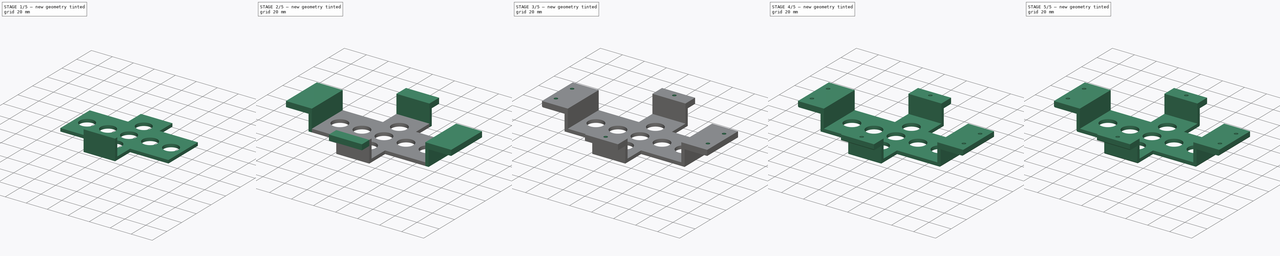
[diagram: build sequence overview — one tinted view per stage of 5, left to right]
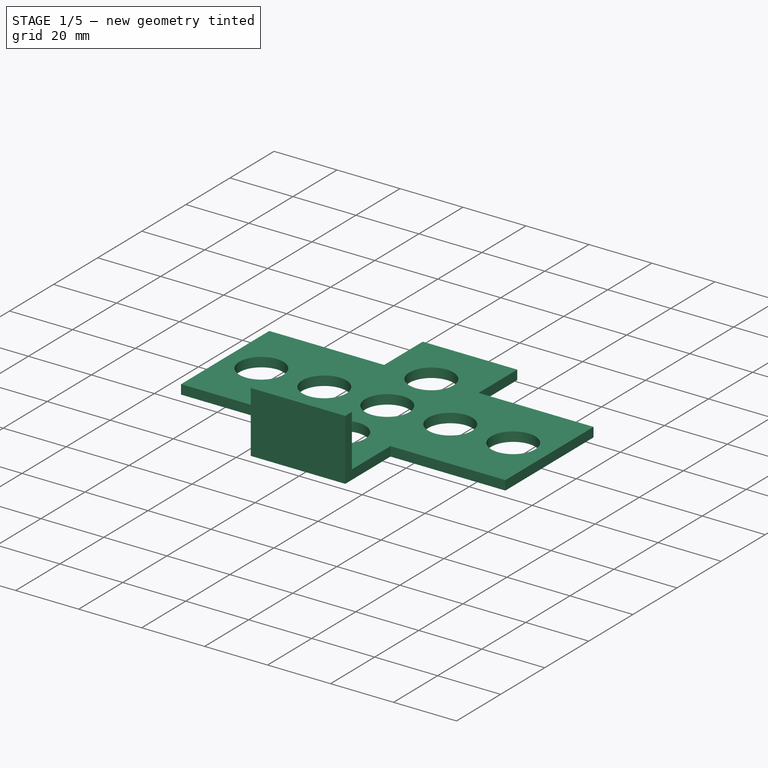
[diagram: stage 1 of 5 — iso view after this stage's code; geometry added in this stage tinted green]
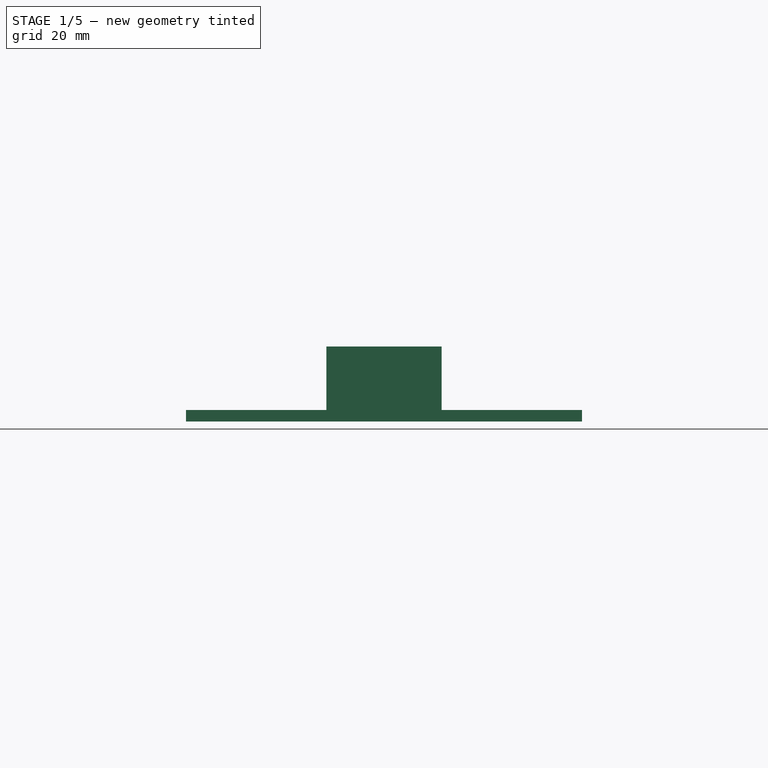
[diagram: stage 1 of 5 — front view after this stage's code; geometry added in this stage tinted green]
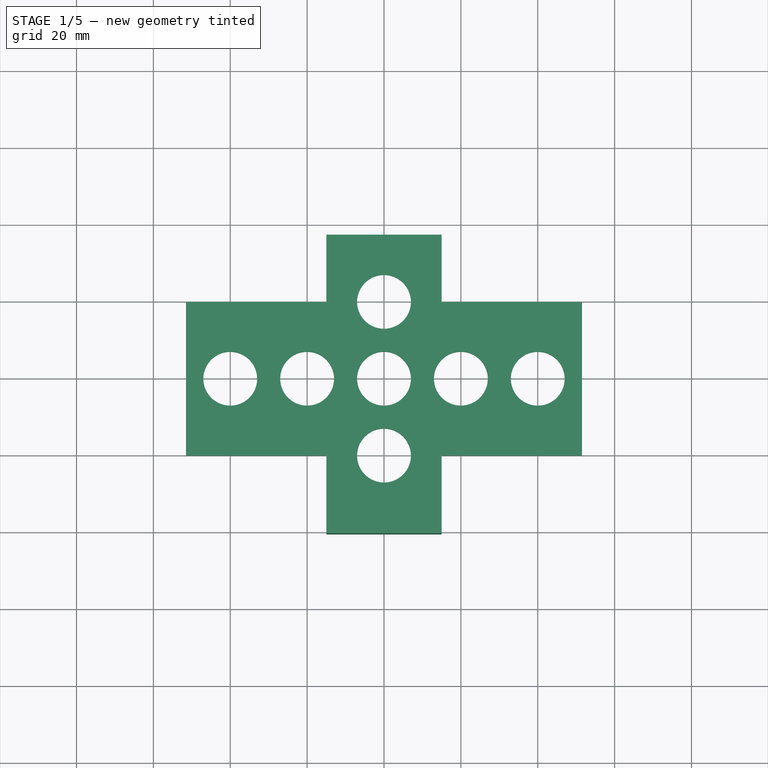
[diagram: stage 1 of 5 — top view after this stage's code; geometry added in this stage tinted green]
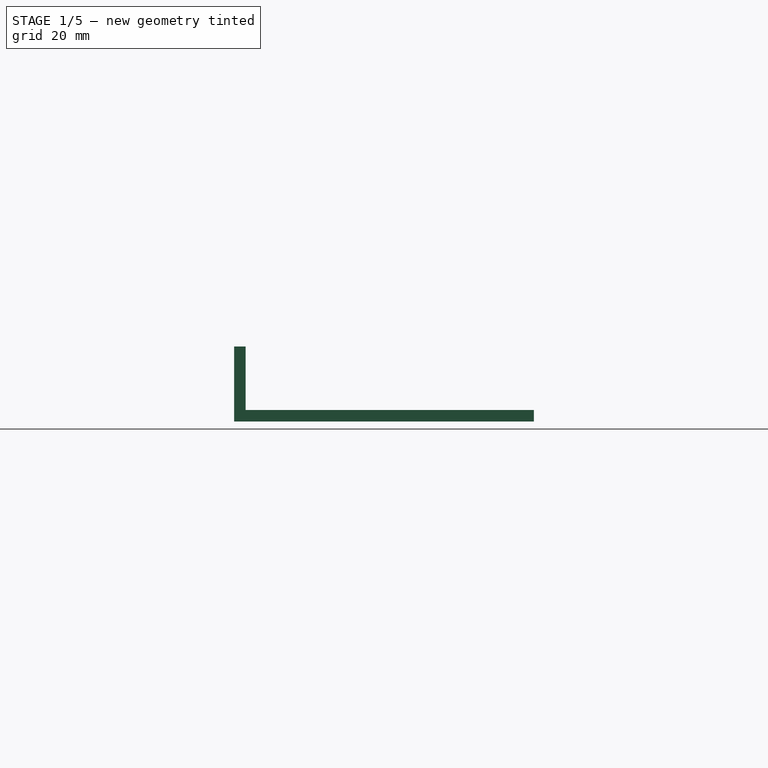
[diagram: stage 1 of 5 — right view after this stage's code; geometry added in this stage tinted green]
FCSTD DOCUMENT  (FreeCAD 0.18R4 (GitTag))
Label: battery-bracket0.3
License: All rights reserved
LicenseURL: http://en.wikipedia.org/wiki/All_rights_reserved
objects: Sketcher::SketchObject×9, PartDesign::Fillet×8, PartDesign::Pad×6, PartDesign::Pocket×3, PartDesign::Body×1
note: 36 computed .brp shape members not serialized (recipe doc carries the construction recipe); baked Part::Feature solids carry a one-line shape summary decoded from their .brp

FEATURE [Sketcher::SketchObject] Sketch  label="frame"
  MapMode = 5
  Support = -> [XY_Plane]
  sketch-geometry (12):
    g0: LineSegment StartX=-51.5 StartY=-20 StartZ=0 EndX=-51.5 EndY=20 EndZ=0
    g1: LineSegment StartX=-51.5 StartY=20 StartZ=0 EndX=-15 EndY=20 EndZ=0
    g2: LineSegment StartX=-15 StartY=20 StartZ=0 EndX=-15 EndY=37.5 EndZ=0
    g3: LineSegment StartX=-15 StartY=37.5 StartZ=0 EndX=15 EndY=37.5 EndZ=0
    g4: LineSegment StartX=15 StartY=37.5 StartZ=0 EndX=15 EndY=20 EndZ=0
    g5: LineSegment StartX=15 StartY=20 StartZ=0 EndX=51.5 EndY=20 EndZ=0
    g6: LineSegment StartX=51.5 StartY=20 StartZ=0 EndX=51.5 EndY=-20 EndZ=0
    g7: LineSegment StartX=51.5 StartY=-20 StartZ=0 EndX=15 EndY=-20 EndZ=0
    g8: LineSegment StartX=15 StartY=-20 StartZ=0 EndX=15 EndY=-37.5 EndZ=0
    g9: LineSegment StartX=15 StartY=-37.5 StartZ=0 EndX=-15 EndY=-37.5 EndZ=0
    g10: LineSegment StartX=-15 StartY=-37.5 StartZ=0 EndX=-15 EndY=-20 EndZ=0
    g11: LineSegment StartX=-15 StartY=-20 StartZ=0 EndX=-51.5 EndY=-20 EndZ=0
  constraints (32):
    c: Coincident(g0,g1)
    c: Horizontal(g1)
    c: Coincident(g1,g2)
    c: Vertical(g2)
    c: Coincident(g2,g3)
    c: Coincident(g3,g4)
    c: Vertical(g4)
    c: Coincident(g4,g5)
    c: Horizontal(g5)
    c: Coincident(g5,g6)
    c: Vertical(g6)
    c: Coincident(g6,g7)
    c: Horizontal(g7)
    c: Coincident(g7,g8)
    c: Vertical(g8)
    c: Coincident(g8,g9)
    c: Horizontal(g9)
    c: Coincident(g9,g10)
    c: Vertical(g10)
    c: Coincident(g10,g11)
    c: Coincident(g11,g0)
    c: Horizontal(g11)
    c: DistanceY(g8,g3) = 75
    c: DistanceX(g0,g6) = 103
    c: Symmetric(g0,g6,g-2)
    c: Symmetric(g8,g3,g-1)
    c: DistanceX(g3,g3) = 30
    c: Equal(g3,g9)
    c: DistanceY(g6,g6) = 40
    c: Equal(g0,g6)
    c: Symmetric(g2,g3,g-2)
    c: Symmetric(g0,g0,g-1)
FEATURE [PartDesign::Pad] Pad
  Length = 3
  Length2 = 100
  Profile = -> Sketch
  Type = 0
FEATURE [Sketcher::SketchObject] Sketch001  label="holes"
  MapMode = 5
  Placement = pos=(0,0,3) rot=(0,0,1;0rad)
  Support = -> [Pad]
  sketch-geometry (7):
    g0: Circle CenterX=-40 CenterY=0 CenterZ=0 NormalX=0 NormalY=0 NormalZ=1 AngleXU=0 Radius=7
    g1: Circle CenterX=-20 CenterY=0 CenterZ=0 NormalX=0 NormalY=0 NormalZ=1 AngleXU=0 Radius=7
    g2: Circle CenterX=0 CenterY=0 CenterZ=0 NormalX=0 NormalY=0 NormalZ=1 AngleXU=0 Radius=7
    g3: Circle CenterX=20 CenterY=0 CenterZ=0 NormalX=0 NormalY=0 NormalZ=1 AngleXU=0 Radius=7
    g4: Circle CenterX=40 CenterY=0 CenterZ=0 NormalX=0 NormalY=0 NormalZ=1 AngleXU=0 Radius=7
    g5: Circle CenterX=0 CenterY=-20 CenterZ=0 NormalX=0 NormalY=0 NormalZ=1 AngleXU=0 Radius=7
    g6: Circle CenterX=0 CenterY=20 CenterZ=0 NormalX=0 NormalY=0 NormalZ=1 AngleXU=0 Radius=7
  constraints (20):
    c: PointOnObject(g5,g-2)
    c: Radius(g2) = 7
    c: Radius(g1) = 7
    c: Radius(g0) = 7
    c: Radius(g4) = 7
    c: Radius(g3) = 7
    c: Radius(g5) = 7
    c: Radius(g6) = 7
    c: Coincident(g2,g-1)
    c: DistanceY(g3,g2) = 0
    c: DistanceY(g1,g2) = 0
    c: DistanceY(g-1,g0) = 0
    c: DistanceY(g4,g-1) = 0
    c: DistanceX(g-1,g3) = 20
    c: DistanceX(g1,g-1) = 20
    c: DistanceX(g4) = 40
    c: DistanceX(g0,g-1) = 40
    c: DistanceY(g5) = -20
    c: DistanceY(g6) = 20
    c: DistanceX(g6) = 0
FEATURE [PartDesign::Pocket] Pocket
  BaseFeature = -> Pad
  Length = 5
  Length2 = 100
  Profile = -> Sketch001
  Type = 1
FEATURE [Sketcher::SketchObject] Sketch002
  ExternalGeometry = -> [Pocket]
  MapMode = 5
  Placement = pos=(0,-37.5,0) rot=(1,0,0;1.5708rad)
  Support = -> [Pocket]
  sketch-geometry (4):
    g0: LineSegment StartX=-15 StartY=0 StartZ=0 EndX=15 EndY=0 EndZ=0
    g1: LineSegment StartX=15 StartY=0 StartZ=0 EndX=15 EndY=19.5 EndZ=0
    g2: LineSegment StartX=15 StartY=19.5 StartZ=0 EndX=-15 EndY=19.5 EndZ=0
    g3: LineSegment StartX=-15 StartY=19.5 StartZ=0 EndX=-15 EndY=0 EndZ=0
  constraints (10):
    c: Coincident(g0,g1)
    c: Coincident(g1,g2)
    c: Coincident(g2,g3)
    c: Coincident(g3,g0)
    c: Horizontal(g2)
    c: Vertical(g1)
    c: Vertical(g3)
    c: Coincident(g0,g-3)
    c: Coincident(g0,g-3)
    c: DistanceY(g-4,g1) = 16.5
FEATURE [PartDesign::Pad] Pad001
  BaseFeature = -> Pocket
  Length = 3
  Length2 = 100
  Profile = -> Sketch002
  Type = 0
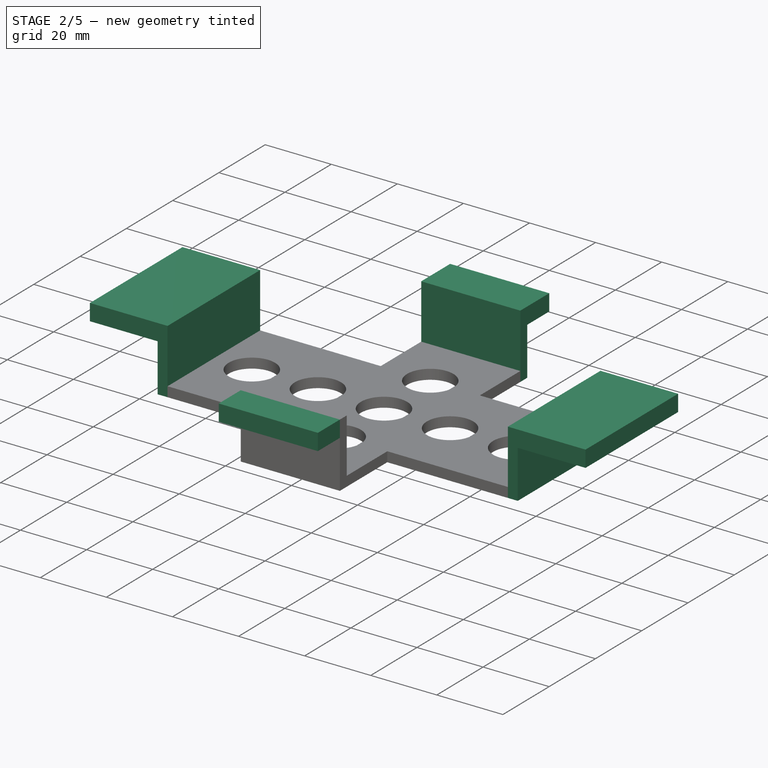
[diagram: stage 2 of 5 — iso view after this stage's code; geometry added in this stage tinted green]
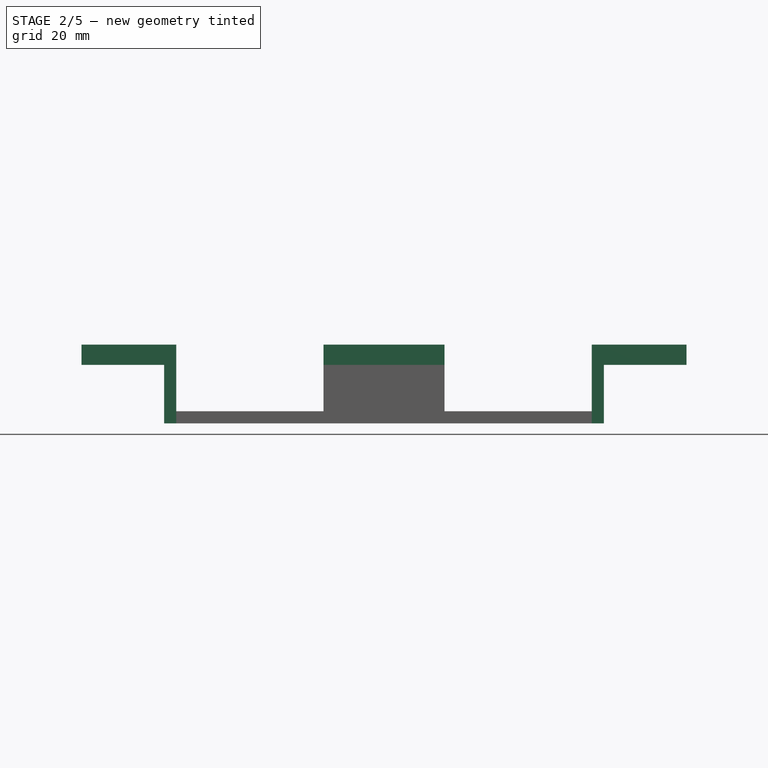
[diagram: stage 2 of 5 — front view after this stage's code; geometry added in this stage tinted green]
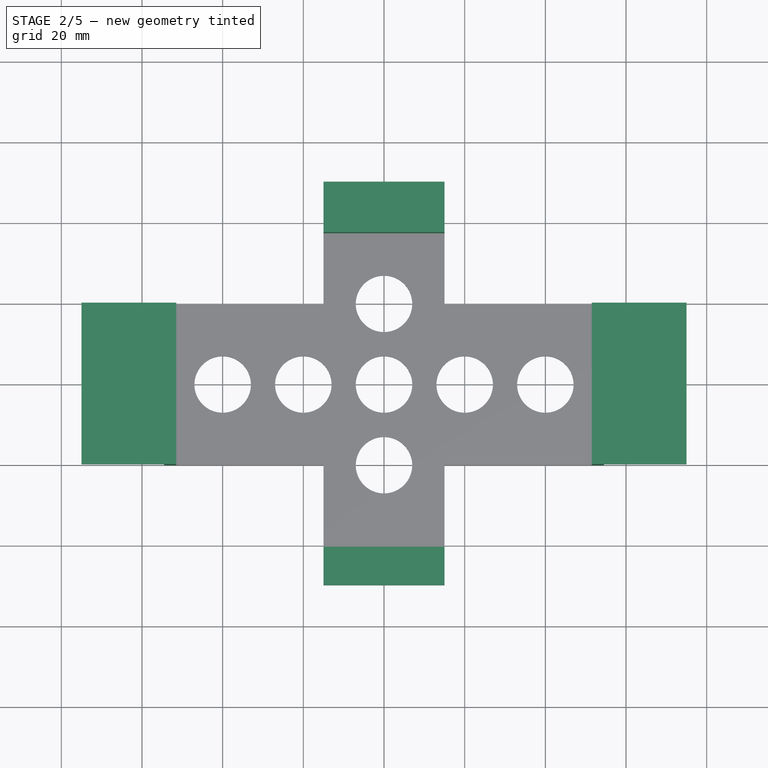
[diagram: stage 2 of 5 — top view after this stage's code; geometry added in this stage tinted green]
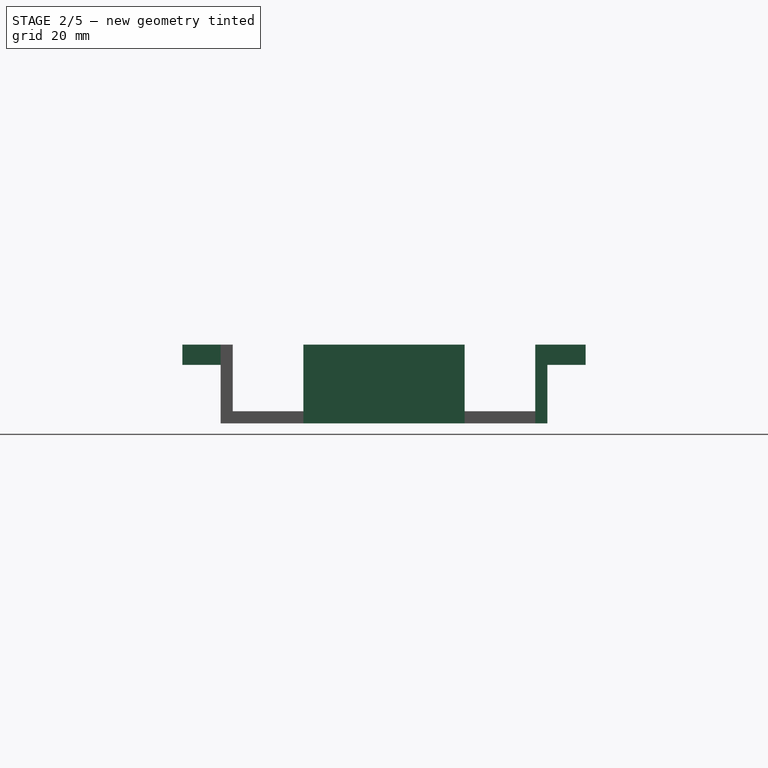
[diagram: stage 2 of 5 — right view after this stage's code; geometry added in this stage tinted green]
FEATURE [Sketcher::SketchObject] Sketch003
  ExternalGeometry = -> [Pad001]
  MapMode = 5
  Placement = pos=(0,37.5,0) rot=(0,0.707107,0.707107;3.14159rad)
  Support = -> [Pad001]
  sketch-geometry (4):
    g0: LineSegment StartX=-15 StartY=0 StartZ=0 EndX=15 EndY=0 EndZ=0
    g1: LineSegment StartX=15 StartY=0 StartZ=0 EndX=15 EndY=19.5 EndZ=0
    g2: LineSegment StartX=15 StartY=19.5 StartZ=0 EndX=-15 EndY=19.5 EndZ=0
    g3: LineSegment StartX=-15 StartY=19.5 StartZ=0 EndX=-15 EndY=0 EndZ=0
  constraints (10):
    c: Coincident(g0,g1)
    c: Coincident(g1,g2)
    c: Coincident(g2,g3)
    c: Coincident(g3,g0)
    c: Horizontal(g0)
    c: Horizontal(g2)
    c: Vertical(g1)
    c: Vertical(g3)
    c: Coincident(g2,g-4)
    c: Coincident(g0,g-3)
FEATURE [PartDesign::Pad] Pad002
  BaseFeature = -> Pad001
  Length = 3
  Length2 = 100
  Profile = -> Sketch003
  Type = 0
FEATURE [Sketcher::SketchObject] Sketch004
  ExternalGeometry = -> [Pad002]
  MapMode = 5
  Placement = pos=(-51.5,0,0) rot=(0.57735,-0.57735,-0.57735;2.0944rad)
  Support = -> [Pad002]
  sketch-geometry (4):
    g0: LineSegment StartX=-20 StartY=0 StartZ=0 EndX=20 EndY=0 EndZ=0
    g1: LineSegment StartX=20 StartY=0 StartZ=0 EndX=20 EndY=19.5 EndZ=0
    g2: LineSegment StartX=20 StartY=19.5 StartZ=0 EndX=-20 EndY=19.5 EndZ=0
    g3: LineSegment StartX=-20 StartY=19.5 StartZ=0 EndX=-20 EndY=0 EndZ=0
  constraints (10):
    c: Coincident(g0,g1)
    c: Coincident(g1,g2)
    c: Coincident(g2,g3)
    c: Coincident(g3,g0)
    c: Horizontal(g2)
    c: Vertical(g1)
    c: Vertical(g3)
    c: Coincident(g0,g-4)
    c: Coincident(g0,g-4)
    c: DistanceY(g2,g-3) = 0
FEATURE [PartDesign::Pad] Pad003
  BaseFeature = -> Pad002
  Length = 3
  Length2 = 100
  Profile = -> Sketch004
  Type = 0
FEATURE [Sketcher::SketchObject] Sketch005
  ExternalGeometry = -> [Pad003]
  MapMode = 5
  Placement = pos=(51.5,0,0) rot=(0.57735,0.57735,0.57735;2.0944rad)
  Support = -> [Pad003]
  sketch-geometry (4):
    g0: LineSegment StartX=-20 StartY=0 StartZ=0 EndX=20 EndY=0 EndZ=0
    g1: LineSegment StartX=20 StartY=0 StartZ=0 EndX=20 EndY=19.5 EndZ=0
    g2: LineSegment StartX=20 StartY=19.5 StartZ=0 EndX=-20 EndY=19.5 EndZ=0
    g3: LineSegment StartX=-20 StartY=19.5 StartZ=0 EndX=-20 EndY=0 EndZ=0
  constraints (10):
    c: Coincident(g0,g1)
    c: Coincident(g1,g2)
    c: Coincident(g2,g3)
    c: Coincident(g3,g0)
    c: Horizontal(g0)
    c: Horizontal(g2)
    c: Vertical(g1)
    c: Vertical(g3)
    c: Coincident(g2,g-4)
    c: Coincident(g0,g-3)
FEATURE [PartDesign::Pad] Pad004
  BaseFeature = -> Pad003
  Length = 3
  Length2 = 100
  Profile = -> Sketch005
  Type = 0
FEATURE [Sketcher::SketchObject] Sketch006  label="tops"
  ExternalGeometry = -> [Pad004]
  MapMode = 5
  Placement = pos=(0,0,19.5) rot=(0,0,1;0rad)
  Support = -> [Pad004]
  sketch-geometry (16):
    g0: LineSegment StartX=-51.5 StartY=20 StartZ=0 EndX=-75 EndY=20 EndZ=0
    g1: LineSegment StartX=-75 StartY=20 StartZ=0 EndX=-75 EndY=-20 EndZ=0
    g2: LineSegment StartX=-75 StartY=-20 StartZ=0 EndX=-51.5 EndY=-20 EndZ=0
    g3: LineSegment StartX=-51.5 StartY=-20 StartZ=0 EndX=-51.5 EndY=20 EndZ=0
    g4: LineSegment StartX=51.5 StartY=20 StartZ=0 EndX=75 EndY=20 EndZ=0
    g5: LineSegment StartX=75 StartY=20 StartZ=0 EndX=75 EndY=-20 EndZ=0
    g6: LineSegment StartX=75 StartY=-20 StartZ=0 EndX=51.5 EndY=-20 EndZ=0
    g7: LineSegment StartX=51.5 StartY=-20 StartZ=0 EndX=51.5 EndY=20 EndZ=0
    g8: LineSegment StartX=-15 StartY=50 StartZ=0 EndX=15 EndY=50 EndZ=0
    g9: LineSegment StartX=15 StartY=50 StartZ=0 EndX=15 EndY=37.5 EndZ=0
    g10: LineSegment StartX=15 StartY=37.5 StartZ=0 EndX=-15 EndY=37.5 EndZ=0
    g11: LineSegment StartX=-15 StartY=37.5 StartZ=0 EndX=-15 EndY=50 EndZ=0
    g12: LineSegment StartX=-15 StartY=-37.5 StartZ=0 EndX=15 EndY=-37.5 EndZ=0
    g13: LineSegment StartX=15 StartY=-37.5 StartZ=0 EndX=15 EndY=-50 EndZ=0
    g14: LineSegment StartX=15 StartY=-50 StartZ=0 EndX=-15 EndY=-50 EndZ=0
    g15: LineSegment StartX=-15 StartY=-50 StartZ=0 EndX=-15 EndY=-37.5 EndZ=0
  constraints (38):
    c: Coincident(g0,g1)
    c: Coincident(g1,g2)
    c: Coincident(g2,g3)
    c: Coincident(g3,g0)
    c: Horizontal(g0)
    c: Horizontal(g2)
    c: Vertical(g1)
    c: Coincident(g0,g-3)
    c: Coincident(g2,g-3)
    c: Coincident(g4,g5)
    c: Coincident(g5,g6)
    c: Coincident(g6,g7)
    c: Coincident(g7,g4)
    c: Horizontal(g6)
    c: Vertical(g5)
    c: Coincident(g-4,g4)
    c: Coincident(g6,g-4)
    c: DistanceX(g0,g4) = 150
    c: Symmetric(g0,g4,g-2)
    c: Coincident(g8,g9)
    c: Coincident(g9,g10)
    c: Coincident(g10,g11)
    c: Coincident(g11,g8)
    c: Horizontal(g8)
    c: Vertical(g9)
    c: Vertical(g11)
    c: Coincident(g9,g-5)
    c: Coincident(g10,g-5)
    c: Coincident(g12,g13)
    c: Coincident(g13,g14)
    c: Coincident(g14,g15)
    c: Coincident(g15,g12)
    c: Horizontal(g14)
    c: Vertical(g15)
    c: Coincident(g12,g-6)
    c: Coincident(g-6,g12)
    c: DistanceY(g13,g8) = 100
    c: Symmetric(g13,g8,g-1)
FEATURE [PartDesign::Pad] Pad005
  BaseFeature = -> Pad004
  Length = 5
  Length2 = 100
  Profile = -> Sketch006
  Reversed = true
  Type = 0
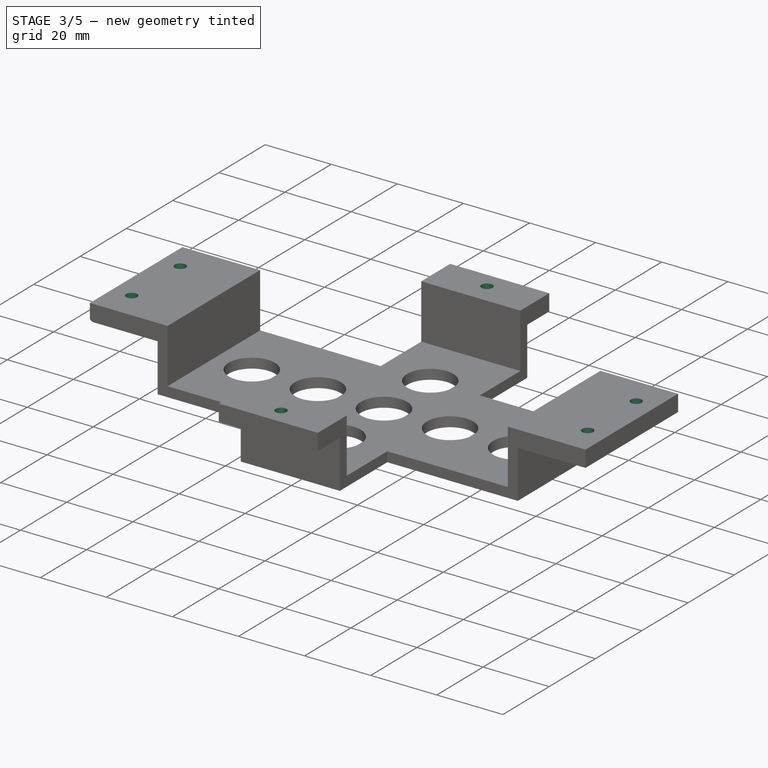
[diagram: stage 3 of 5 — iso view after this stage's code; geometry added in this stage tinted green]
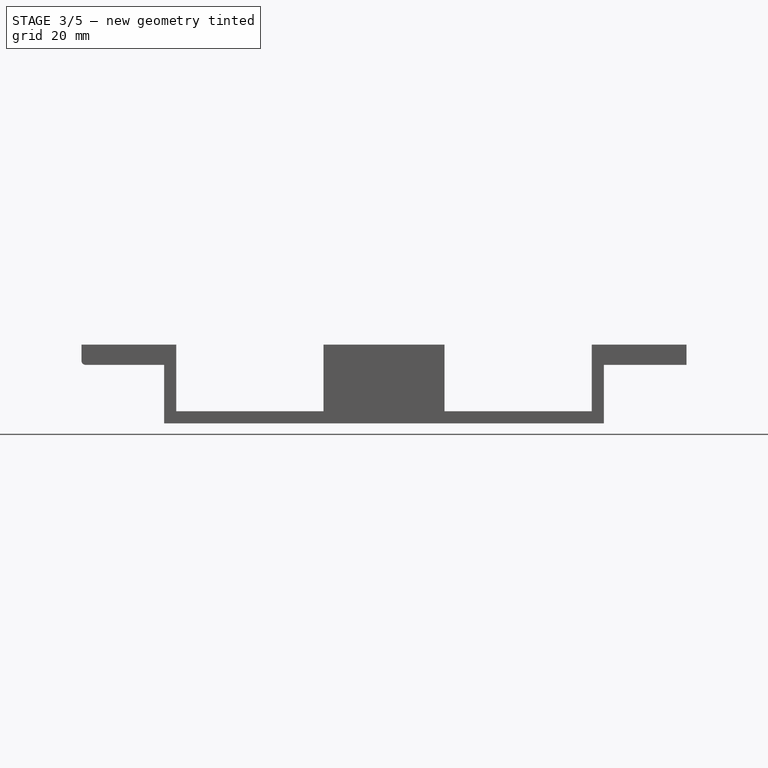
[diagram: stage 3 of 5 — front view after this stage's code; geometry added in this stage tinted green]
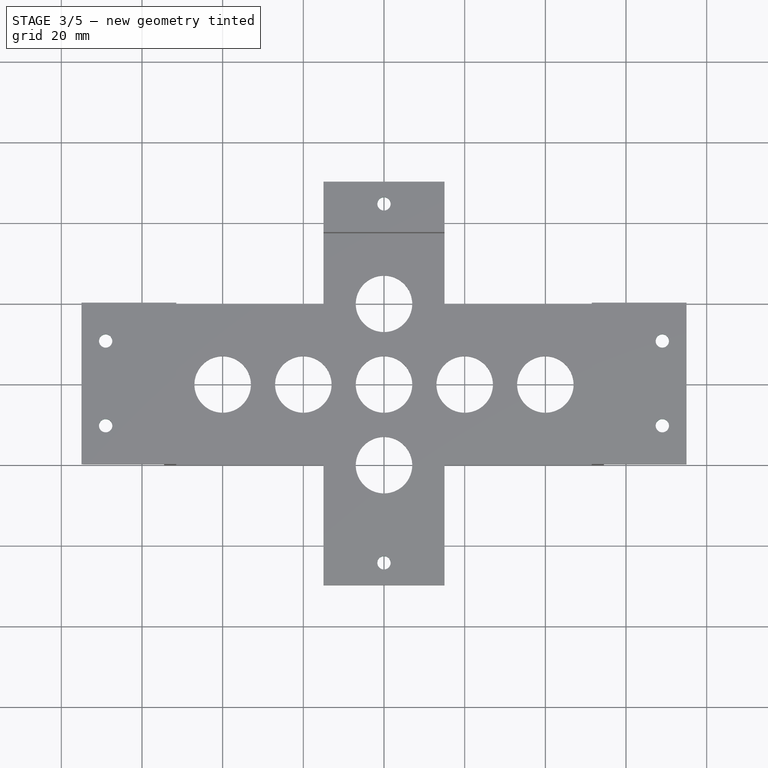
[diagram: stage 3 of 5 — top view after this stage's code; geometry added in this stage tinted green]
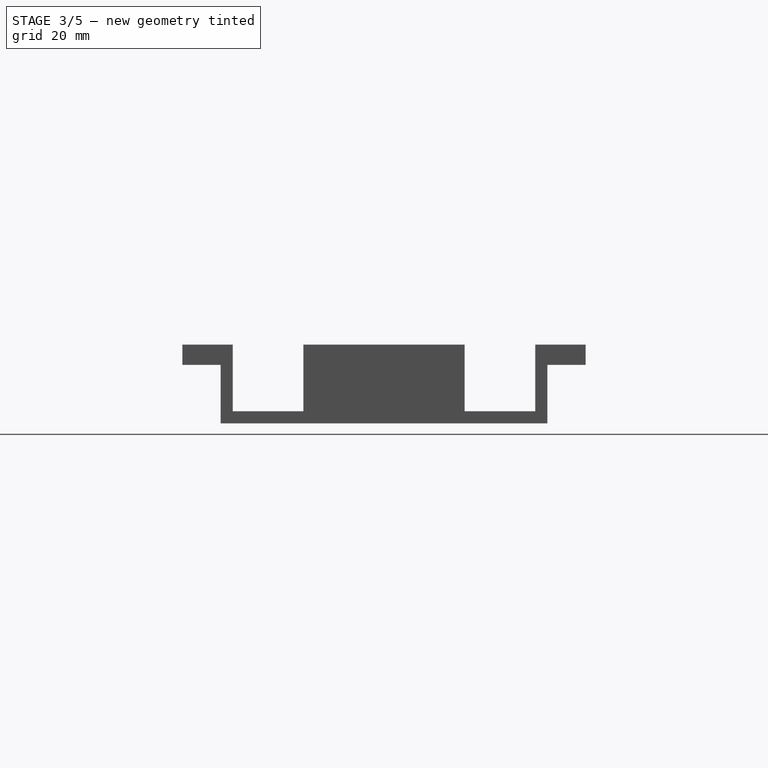
[diagram: stage 3 of 5 — right view after this stage's code; geometry added in this stage tinted green]
FEATURE [Sketcher::SketchObject] Sketch007  label="screwholes"
  MapMode = 5
  Placement = pos=(0,0,14.5) rot=(1,0,0;3.14159rad)
  Support = -> [Pad005]
  sketch-geometry (6):
    g0: Circle CenterX=-69 CenterY=10.5 CenterZ=0 NormalX=0 NormalY=0 NormalZ=1 AngleXU=0 Radius=1.65
    g1: Circle CenterX=69 CenterY=10.5 CenterZ=0 NormalX=0 NormalY=0 NormalZ=1 AngleXU=0 Radius=1.65
    g2: Circle CenterX=0 CenterY=44.5 CenterZ=0 NormalX=0 NormalY=0 NormalZ=1 AngleXU=0 Radius=1.65
    g3: Circle CenterX=0 CenterY=-44.5 CenterZ=0 NormalX=0 NormalY=0 NormalZ=1 AngleXU=0 Radius=1.65
    g4: Circle CenterX=-69 CenterY=-10.5 CenterZ=0 NormalX=0 NormalY=0 NormalZ=1 AngleXU=0 Radius=1.65
    g5: Circle CenterX=69 CenterY=-10.5 CenterZ=0 NormalX=0 NormalY=0 NormalZ=1 AngleXU=0 Radius=1.65
  constraints (16):
    c: PointOnObject(g2,g-2)
    c: DistanceY(g3,g2) = 89
    c: DistanceX(g0,g1) = 138
    c: Symmetric(g0,g1,g-2)
    c: Symmetric(g3,g2,g-1)
    c: Radius(g3) = 1.65
    c: Radius(g1) = 1.65
    c: Radius(g2) = 1.65
    c: Radius(g0) = 1.65
    c: DistanceY(g0) = 10.5
    c: DistanceX(g4,g0) = 0
    c: DistanceY(g4,g0) = 21
    c: Radius(g4) = 1.65
    c: Radius(g5) = 1.65
    c: DistanceX(g1,g5) = 0
    c: DistanceY(g5,g4) = 0
FEATURE [PartDesign::Pocket] Pocket001
  BaseFeature = -> Pad005
  Length = 5
  Length2 = 100
  Profile = -> Sketch007
  Type = 1
FEATURE [Sketcher::SketchObject] Sketch008  label="nutpositions"
  ExternalGeometry = -> [Pocket001]
  MapMode = 5
  Placement = pos=(0,0,14.5) rot=(1,0,0;3.14159rad)
  Support = -> [Pocket001]
  sketch-geometry (42):
    g0: LineSegment StartX=-65.95 StartY=8.73908 StartZ=0 EndX=-65.95 EndY=12.2609 EndZ=0
    g1: LineSegment StartX=-65.95 StartY=12.2609 StartZ=0 EndX=-69 EndY=14.0218 EndZ=0
    g2: LineSegment StartX=-69 StartY=14.0218 StartZ=0 EndX=-72.05 EndY=12.2609 EndZ=0
    g3: LineSegment StartX=-72.05 StartY=12.2609 StartZ=0 EndX=-72.05 EndY=8.73908 EndZ=0
    g4: LineSegment StartX=-72.05 StartY=8.73908 StartZ=0 EndX=-69 EndY=6.97816 EndZ=0
    g5: LineSegment StartX=-69 StartY=6.97816 StartZ=0 EndX=-65.95 EndY=8.73908 EndZ=0
    g6: Circle [constr] CenterX=-69 CenterY=10.5 CenterZ=0 NormalX=0 NormalY=0 NormalZ=1 AngleXU=0 Radius=3.52184
    g7: LineSegment StartX=-65.95 StartY=-12.2609 StartZ=0 EndX=-65.95 EndY=-8.73908 EndZ=0
    g8: LineSegment StartX=-65.95 StartY=-8.73908 StartZ=0 EndX=-69 EndY=-6.97816 EndZ=0
    g9: LineSegment StartX=-69 StartY=-6.97816 StartZ=0 EndX=-72.05 EndY=-8.73908 EndZ=0
    g10: LineSegment StartX=-72.05 StartY=-8.73908 StartZ=0 EndX=-72.05 EndY=-12.2609 EndZ=0
    g11: LineSegment StartX=-72.05 StartY=-12.2609 StartZ=0 EndX=-69 EndY=-14.0218 EndZ=0
    g12: LineSegment StartX=-69 StartY=-14.0218 StartZ=0 EndX=-65.95 EndY=-12.2609 EndZ=0
    g13: Circle [constr] CenterX=-69 CenterY=-10.5 CenterZ=0 NormalX=0 NormalY=0 NormalZ=1 AngleXU=0 Radius=3.52184
    g14: LineSegment StartX=72.05 StartY=8.73908 StartZ=0 EndX=72.05 EndY=12.2609 EndZ=0
    g15: LineSegment StartX=72.05 StartY=12.2609 StartZ=0 EndX=69 EndY=14.0218 EndZ=0
    g16: LineSegment StartX=69 StartY=14.0218 StartZ=0 EndX=65.95 EndY=12.2609 EndZ=0
    g17: LineSegment StartX=65.95 StartY=12.2609 StartZ=0 EndX=65.95 EndY=8.73908 EndZ=0
    g18: LineSegment StartX=65.95 StartY=8.73908 StartZ=0 EndX=69 EndY=6.97816 EndZ=0
    g19: LineSegment StartX=69 StartY=6.97816 StartZ=0 EndX=72.05 EndY=8.73908 EndZ=0
    g20: Circle [constr] CenterX=69 CenterY=10.5 CenterZ=0 NormalX=0 NormalY=0 NormalZ=1 AngleXU=0 Radius=3.52184
    g21: LineSegment StartX=72.05 StartY=-12.2609 StartZ=0 EndX=72.05 EndY=-8.73908 EndZ=0
    g22: LineSegment StartX=72.05 StartY=-8.73908 StartZ=0 EndX=69 EndY=-6.97816 EndZ=0
    g23: LineSegment StartX=69 StartY=-6.97816 StartZ=0 EndX=65.95 EndY=-8.73908 EndZ=0
    g24: LineSegment StartX=65.95 StartY=-8.73908 StartZ=0 EndX=65.95 EndY=-12.2609 EndZ=0
    g25: LineSegment StartX=65.95 StartY=-12.2609 StartZ=0 EndX=69 EndY=-14.0218 EndZ=0
    g26: LineSegment StartX=69 StartY=-14.0218 StartZ=0 EndX=72.05 EndY=-12.2609 EndZ=0
    g27: Circle [constr] CenterX=69 CenterY=-10.5 CenterZ=0 NormalX=0 NormalY=0 NormalZ=1 AngleXU=0 Radius=3.52184
    g28: LineSegment StartX=1.76092 StartY=41.45 StartZ=0 EndX=3.52184 EndY=44.5 EndZ=0
    g29: LineSegment StartX=3.52184 StartY=44.5 StartZ=0 EndX=1.76092 EndY=47.55 EndZ=0
    g30: LineSegment StartX=1.76092 StartY=47.55 StartZ=0 EndX=-1.76092 EndY=47.55 EndZ=0
    g31: LineSegment StartX=-1.76092 StartY=47.55 StartZ=0 EndX=-3.52184 EndY=44.5 EndZ=0
    g32: LineSegment StartX=-3.52184 StartY=44.5 StartZ=0 EndX=-1.76092 EndY=41.45 EndZ=0
    g33: LineSegment StartX=-1.76092 StartY=41.45 StartZ=0 EndX=1.76092 EndY=41.45 EndZ=0
    g34: Circle [constr] CenterX=0 CenterY=44.5 CenterZ=0 NormalX=0 NormalY=0 NormalZ=1 AngleXU=0 Radius=3.52184
    g35: LineSegment StartX=1.76092 StartY=-47.55 StartZ=0 EndX=3.52184 EndY=-44.5 EndZ=0
    g36: LineSegment StartX=3.52184 StartY=-44.5 StartZ=0 EndX=1.76092 EndY=-41.45 EndZ=0
    g37: LineSegment StartX=1.76092 StartY=-41.45 StartZ=0 EndX=-1.76092 EndY=-41.45 EndZ=0
    g38: LineSegment StartX=-1.76092 StartY=-41.45 StartZ=0 EndX=-3.52184 EndY=-44.5 EndZ=0
    g39: LineSegment StartX=-3.52184 StartY=-44.5 StartZ=0 EndX=-1.76092 EndY=-47.55 EndZ=0
    g40: LineSegment StartX=-1.76092 StartY=-47.55 StartZ=0 EndX=1.76092 EndY=-47.55 EndZ=0
    g41: Circle [constr] CenterX=0 CenterY=-44.5 CenterZ=0 NormalX=0 NormalY=0 NormalZ=1 AngleXU=0 Radius=3.52184
  constraints (96):
    c: Coincident(g0,g1)
    c: Coincident(g1,g2)
    c: Coincident(g2,g3)
    c: Coincident(g3,g4)
    c: Coincident(g4,g5)
    c: Coincident(g5,g0)
    c: Equal(g0, g1-g5) x5
    c: PointOnObject(g0,g6)
    c: PointOnObject(g1,g6)
    c: PointOnObject(g2,g6)
    c: PointOnObject(g3,g6)
    c: PointOnObject(g4,g6)
    c: PointOnObject(g5,g6)
    c: Coincident(g6,g-3)
    c: DistanceX(g6,g1) = 0
    c: DistanceX(g3,g0) = 6.1
    c: Coincident(g7,g8)
    c: Coincident(g8,g9)
    c: Coincident(g9,g10)
    c: Coincident(g10,g11)
    c: Coincident(g11,g12)
    c: Coincident(g12,g7)
    c: Equal(g7, g8-g12) x5
    c: PointOnObject(g7,g13)
    c: PointOnObject(g8,g13)
    c: PointOnObject(g9,g13)
    c: PointOnObject(g10,g13)
    c: PointOnObject(g11,g13)
    c: PointOnObject(g12,g13)
    c: DistanceX(g13,g8) = 0
    c: DistanceX(g10,g7) = 6.1
    c: Coincident(g13,g-4)
    c: Coincident(g14,g15)
    c: Coincident(g15,g16)
    c: Coincident(g16,g17)
    c: Coincident(g17,g18)
    c: Coincident(g18,g19)
    c: Coincident(g19,g14)
    c: Equal(g14, g15-g19) x5
    c: PointOnObject(g14,g20)
    c: PointOnObject(g15,g20)
    c: PointOnObject(g16,g20)
    c: PointOnObject(g17,g20)
    c: PointOnObject(g18,g20)
    c: PointOnObject(g19,g20)
    c: DistanceX(g20,g15) = 0
    c: DistanceX(g17,g14) = 6.1
    c: Coincident(g20,g-5)
    c: Coincident(g21,g22)
    c: Coincident(g22,g23)
    c: Coincident(g23,g24)
    c: Coincident(g24,g25)
    c: Coincident(g25,g26)
    c: Coincident(g26,g21)
    c: Equal(g21, g22-g26) x5
    c: PointOnObject(g21,g27)
    c: PointOnObject(g22,g27)
    c: PointOnObject(g23,g27)
    c: PointOnObject(g24,g27)
    c: PointOnObject(g25,g27)
    c: PointOnObject(g26,g27)
    c: DistanceX(g27,g22) = 0
    c: DistanceX(g24,g21) = 6.1
    c: Coincident(g27,g-6)
    c: Coincident(g28,g29)
    c: Coincident(g29,g30)
    c: Coincident(g30,g31)
    c: Coincident(g31,g32)
    c: Coincident(g32,g33)
    c: Coincident(g33,g28)
    c: Equal(g28, g29-g33) x5
    c: PointOnObject(g28,g34)
    c: PointOnObject(g29,g34)
    c: PointOnObject(g30,g34)
    c: PointOnObject(g31,g34)
    c: PointOnObject(g32,g34)
    c: PointOnObject(g33,g34)
    c: Coincident(g-7,g34)
    c: DistanceY(g34,g31) = 0
    c: Coincident(g35,g36)
    c: Coincident(g36,g37)
    c: Coincident(g37,g38)
    c: Coincident(g38,g39)
    c: Coincident(g39,g40)
    c: Coincident(g40,g35)
    c: Equal(g35, g36-g40) x5
    c: PointOnObject(g35,g41)
    c: PointOnObject(g36,g41)
    c: PointOnObject(g37,g41)
    c: PointOnObject(g38,g41)
    c: PointOnObject(g39,g41)
    c: PointOnObject(g40,g41)
    c: Coincident(g41,g-8)
    c: DistanceY(g35,g41) = 0
    c: DistanceY(g28,g29) = 6.1
    c: DistanceY(g35,g36) = 6.1
FEATURE [PartDesign::Pocket] Pocket002
  BaseFeature = -> Pocket001
  Length = 2
  Length2 = 100
  Profile = -> Sketch008
  Type = 0
FEATURE [PartDesign::Fillet] Fillet
  Base = -> Pocket002 [Edge105]
  BaseFeature = -> Pocket002
  Radius = 1
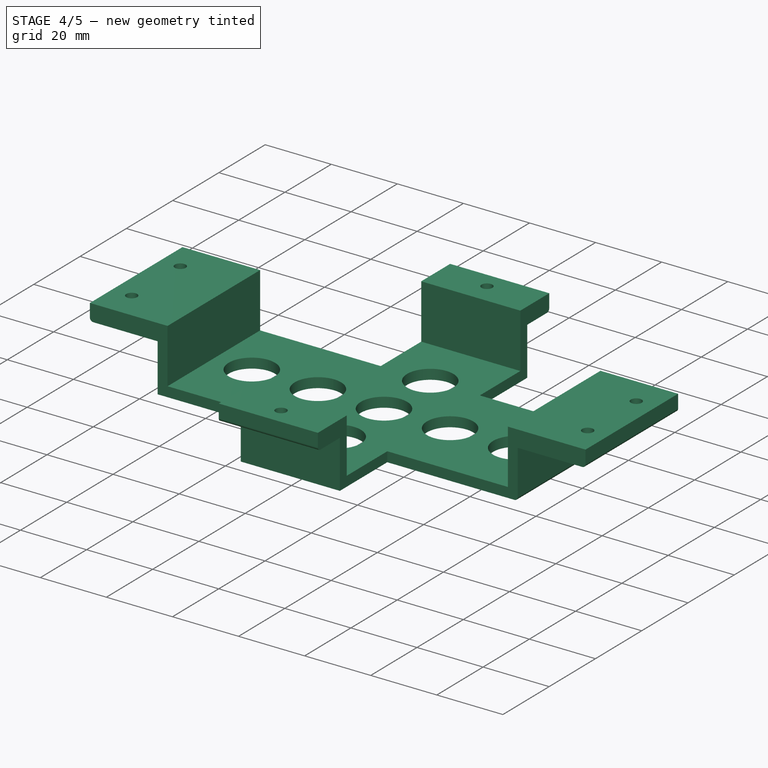
[diagram: stage 4 of 5 — iso view after this stage's code; geometry added in this stage tinted green]
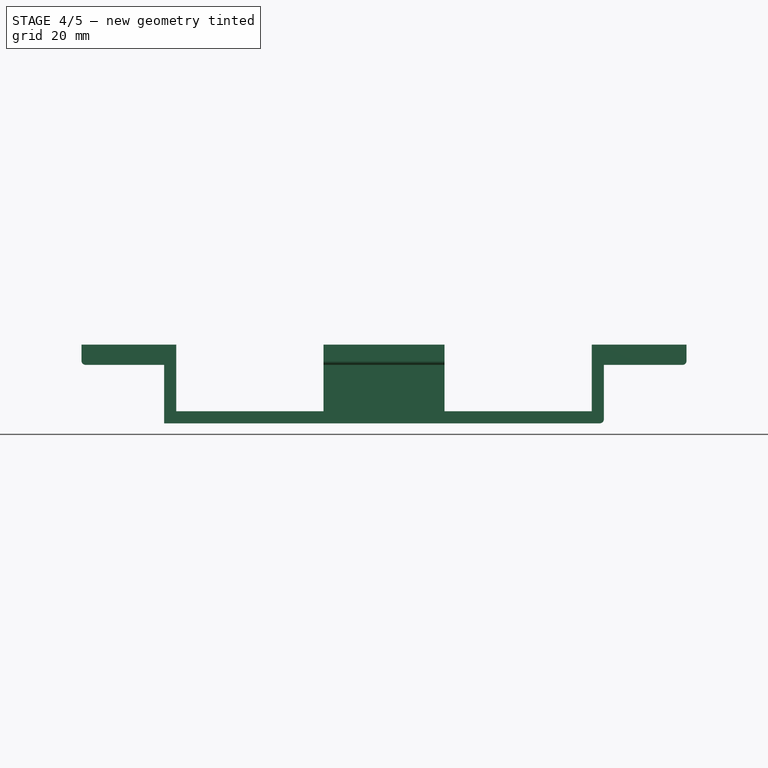
[diagram: stage 4 of 5 — front view after this stage's code; geometry added in this stage tinted green]
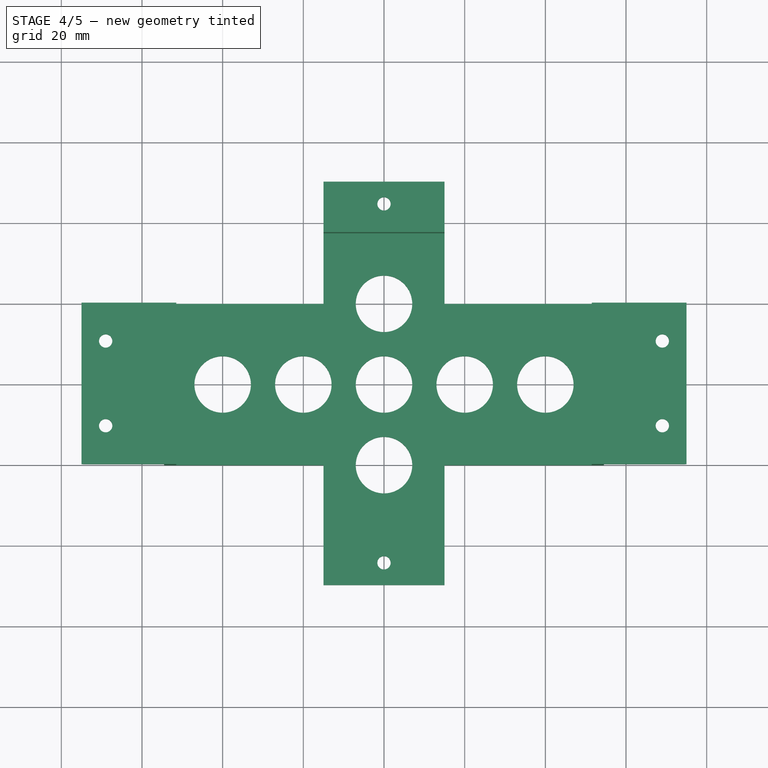
[diagram: stage 4 of 5 — top view after this stage's code; geometry added in this stage tinted green]
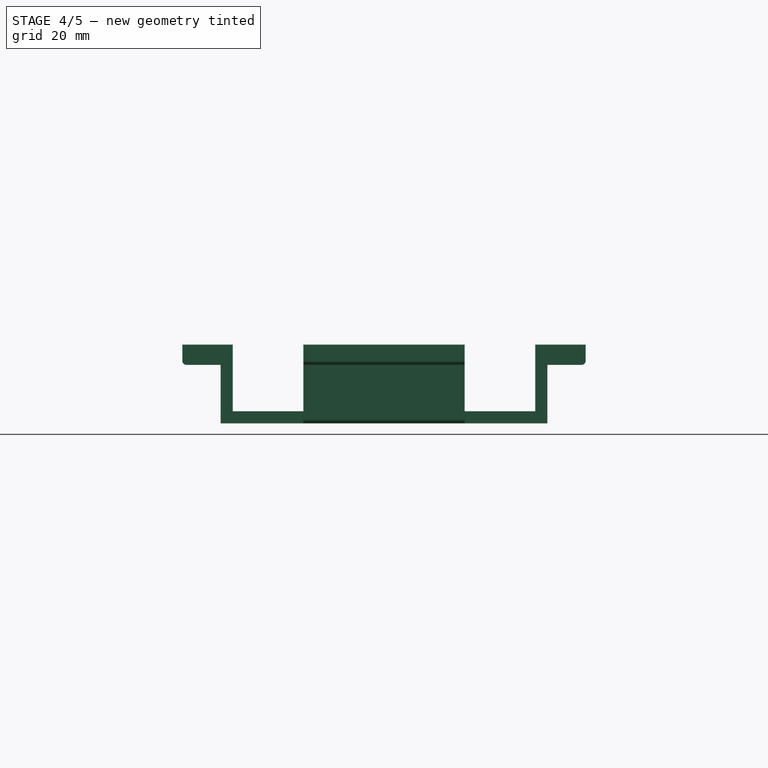
[diagram: stage 4 of 5 — right view after this stage's code; geometry added in this stage tinted green]
FEATURE [PartDesign::Fillet] Fillet001
  Base = -> Fillet [Edge190]
  BaseFeature = -> Fillet
  Radius = 1
FEATURE [PartDesign::Fillet] Fillet002
  Base = -> Fillet001 [Edge177]
  BaseFeature = -> Fillet001
  Radius = 1
FEATURE [PartDesign::Fillet] Fillet003
  Base = -> Fillet002 [Edge189]
  BaseFeature = -> Fillet002
  Radius = 1
FEATURE [PartDesign::Fillet] Fillet004
  Base = -> Fillet003 [Edge25]
  BaseFeature = -> Fillet003
  Radius = 1
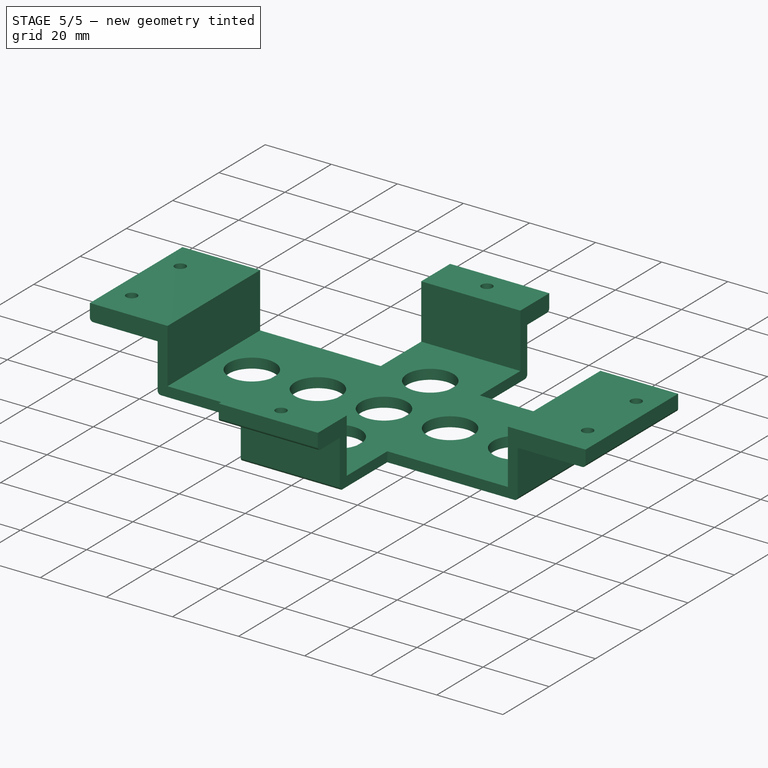
[diagram: stage 5 of 5 — iso view after this stage's code; geometry added in this stage tinted green]
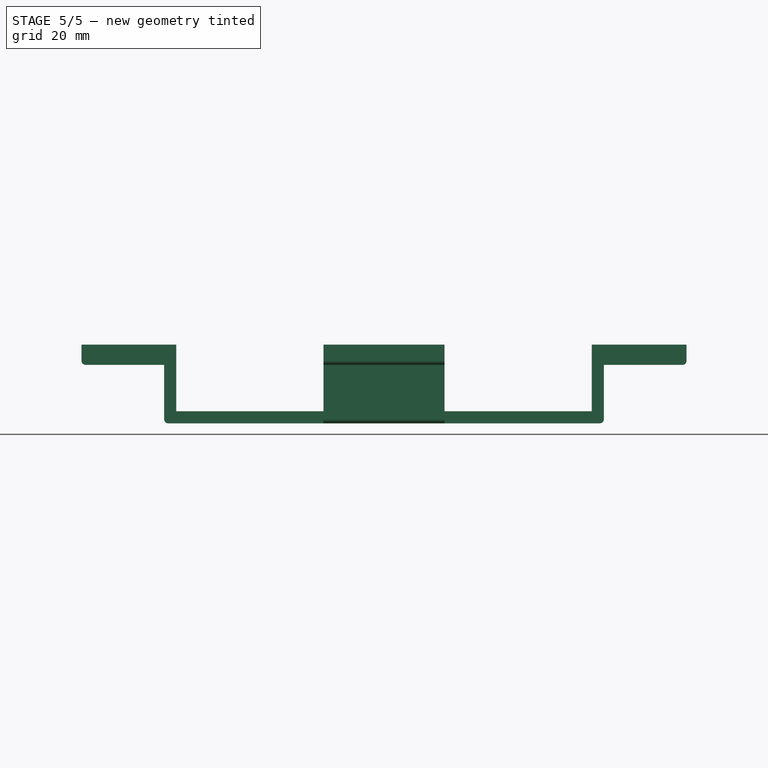
[diagram: stage 5 of 5 — front view after this stage's code; geometry added in this stage tinted green]
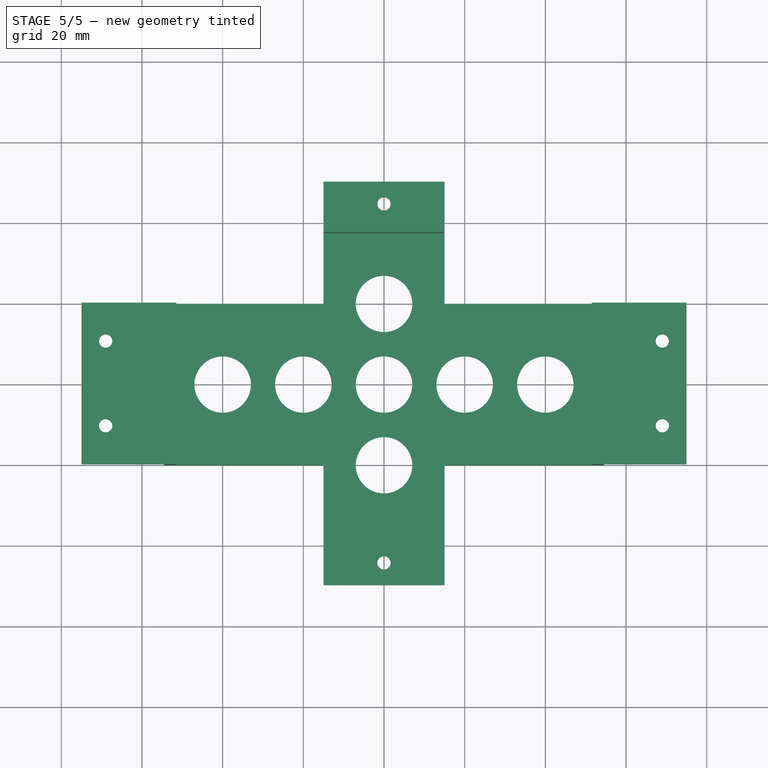
[diagram: stage 5 of 5 — top view after this stage's code; geometry added in this stage tinted green]
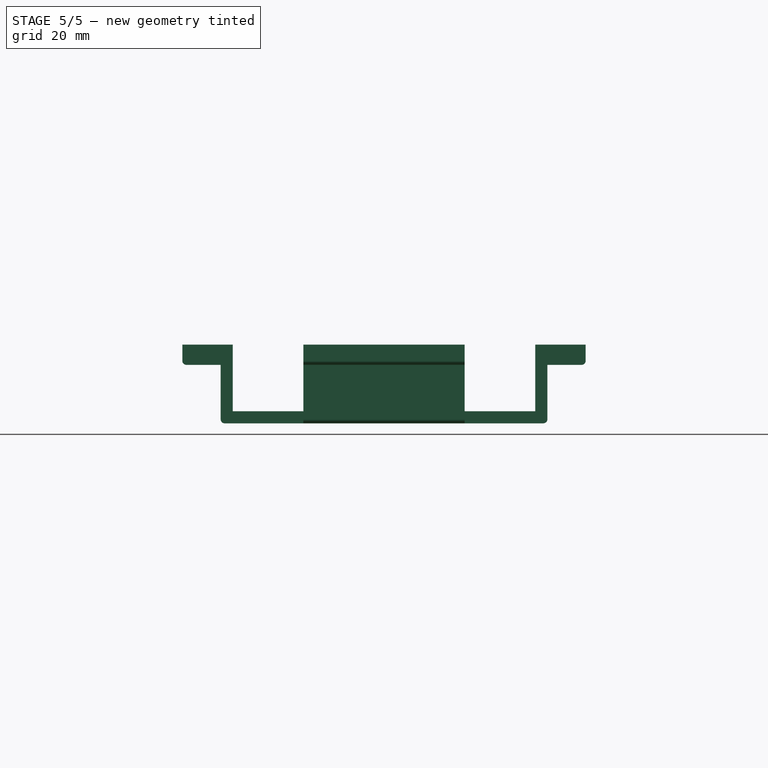
[diagram: stage 5 of 5 — right view after this stage's code; geometry added in this stage tinted green]
FEATURE [PartDesign::Fillet] Fillet005
  Base = -> Fillet004 [Edge132]
  BaseFeature = -> Fillet004
  Radius = 1
FEATURE [PartDesign::Fillet] Fillet006
  Base = -> Fillet005 [Edge44]
  BaseFeature = -> Fillet005
  Radius = 1
FEATURE [PartDesign::Fillet] Fillet007
  Base = -> Fillet006 [Edge50]
  BaseFeature = -> Fillet006
  Radius = 1
FEATURE [PartDesign::Body] Body
  Group = -> [Sketch,Pad,Sketch001,Pocket,Pad001,Sketch003,Pad002,Sketch004,Pad003,Sketch005,Pad004,Sketch006,Pad005,Sketch007,Pocket001,Sketch008,Pocket002,Fillet,Fillet001,Fillet002,Fillet003,Fillet004,Fillet005,Fillet006,Fillet007]
  Origin = -> Origin
  Tip = -> Fillet007
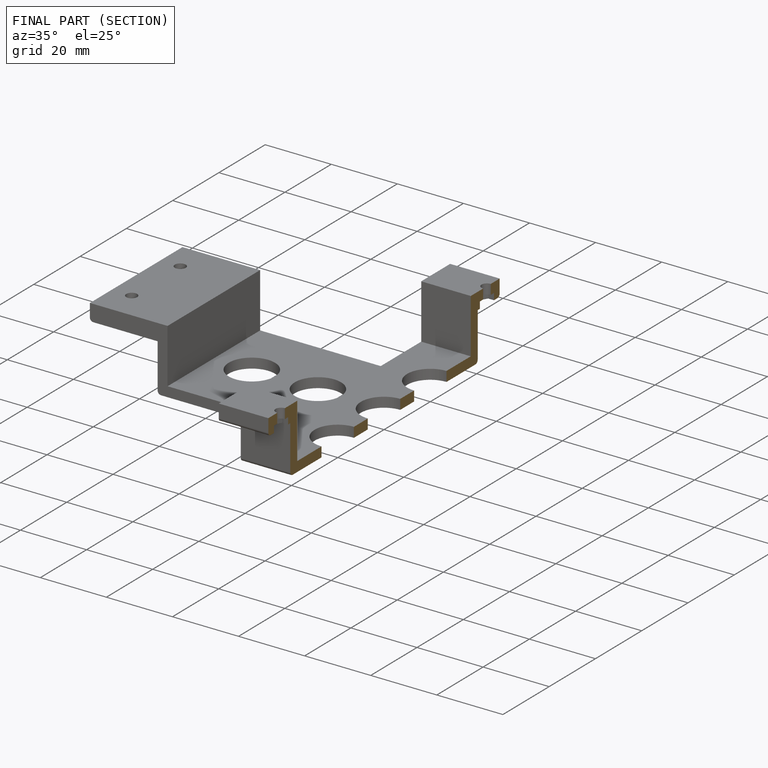
[diagram: finished part — half-section view (interior)]
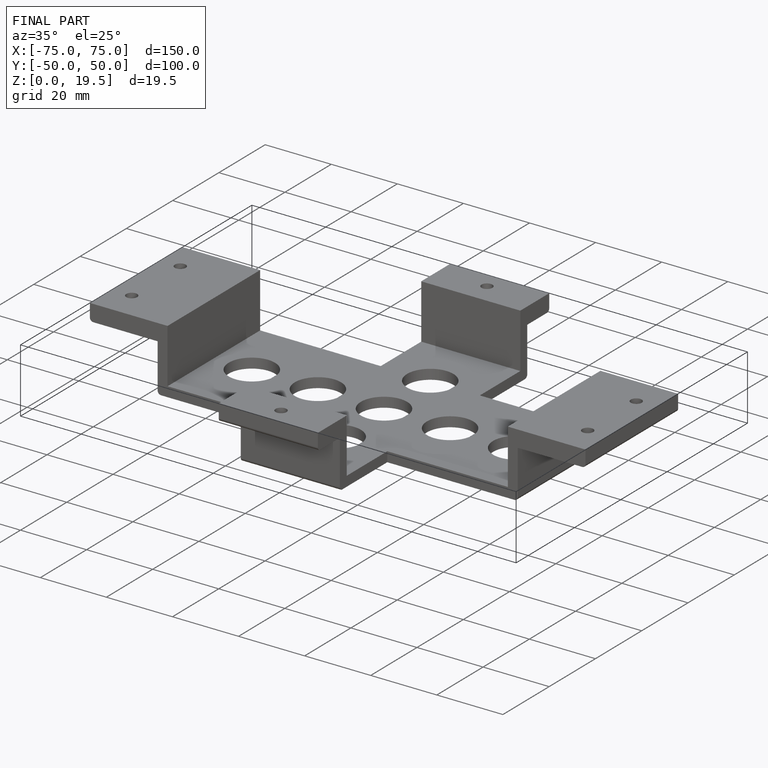
[diagram: finished part — iso view with bounding-box wireframe]
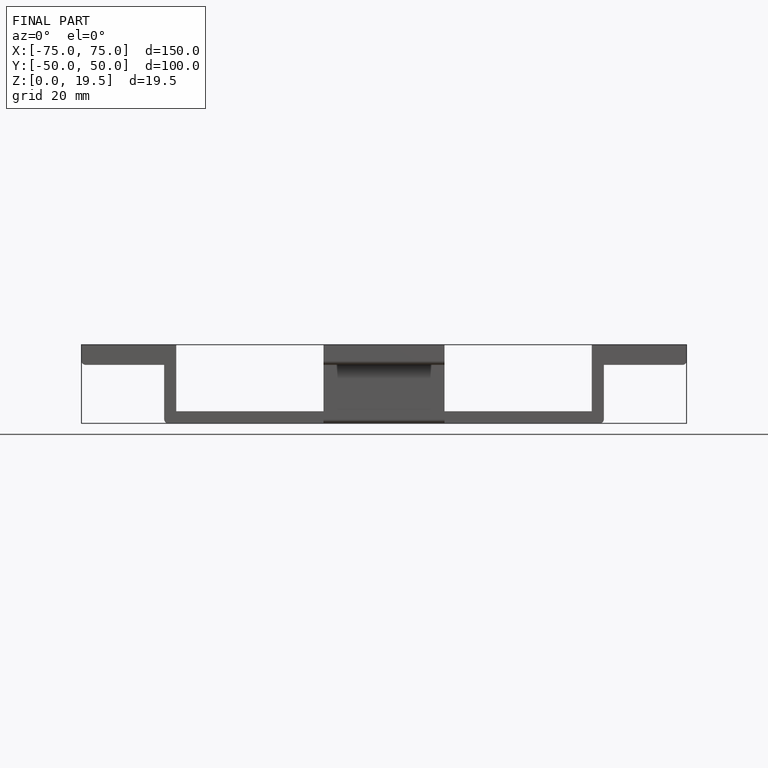
[diagram: finished part — front view with bounding-box wireframe]
